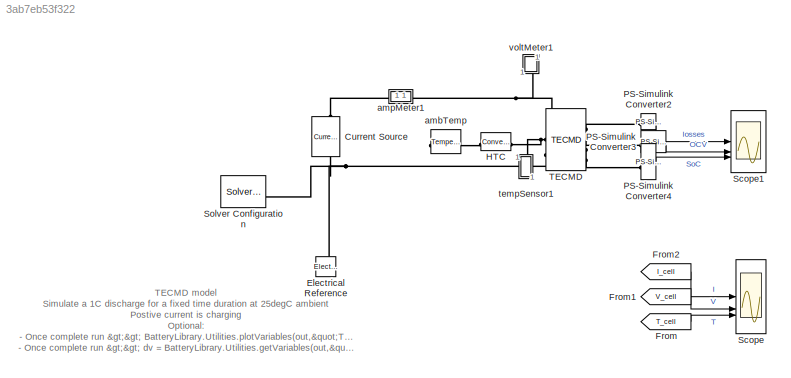
MODEL slx_3ab7eb53f322
KIND model
CONFIG AbsTol = auto
CONFIG EnableMultiTasking = off
CONFIG FixedStep = auto
CONFIG MaxStep = auto
CONFIG MinStep = auto
CONFIG RelTol = 1e-3
CONFIG SampleTimeConstraint = Unconstrained
CONFIG SolverName = VariableStepAuto
CONFIG StartTime = 0.0
CONFIG StopTime = 3600
BLOCK [Reference] Current  Source  REF=ee_lib/Sources/Current Source
  NameLocation = left
  SourceBlock = ee_lib/Sources/Current Source
  SourceType = Current Source
BLOCK [Reference] Electrical Reference  REF=fl_lib/Electrical/Electrical Elements/Electrical Reference
  NameLocation = right
  SourceBlock = fl_lib/Electrical/Electrical Elements/Electrical Reference
  SourceType = Electrical Reference
BLOCK [From] From
  GotoTag = T_cell
  TagVisibility = global
BLOCK [From] From1
  GotoTag = V_cell
  TagVisibility = global
BLOCK [From] From2
  GotoTag = I_cell
  TagVisibility = global
BLOCK [Reference] HTC  REF=fl_lib/Thermal/Thermal Elements/Convective Heat
Transfer
  NameLocation = top
  SourceBlock = fl_lib/Thermal/Thermal Elements/Convective Heat\nTransfer
  SourceType = Convective Heat\nTransfer
BLOCK [Reference] PS-Simulink Converter2  REF=nesl_utility/PS-Simulink
Converter
  SourceBlock = nesl_utility/PS-Simulink\nConverter
  SourceType = PS-Simulink\nConverter
BLOCK [Reference] PS-Simulink Converter3  REF=nesl_utility/PS-Simulink
Converter
  SourceBlock = nesl_utility/PS-Simulink\nConverter
  SourceType = PS-Simulink\nConverter
BLOCK [Reference] PS-Simulink Converter4  REF=nesl_utility/PS-Simulink
Converter
  SourceBlock = nesl_utility/PS-Simulink\nConverter
  SourceType = PS-Simulink\nConverter
BLOCK [Scope] Scope
  Floating = off
  NumInputPorts = 3
  ScopeSpecificationString = Simulink.scopes.TimeScopeBlockCfg('CurrentConfiguration', extmgr.ConfigurationSet(extmgr.Configuration('Core','General UI',true),extmgr.Configuration('Core','Source UI',true),extmgr.Configuration('Sources','WiredSimulink',true,'DataLoggingVariableName','ScopeData1'),extmgr.Configuration('Visuals','Time Domain',true,'SerializedDisplays',{struct('MinYLimReal','-5.9','MaxYLimReal','-3.9','YLabelReal'...<+2730ch>
BLOCK [Scope] Scope1
  Floating = off
  NumInputPorts = 3
  ScopeSpecificationString = Simulink.scopes.TimeScopeBlockCfg('CurrentConfiguration', extmgr.ConfigurationSet(extmgr.Configuration('Core','General UI',true),extmgr.Configuration('Core','Source UI',true),extmgr.Configuration('Sources','WiredSimulink',true,'DataLoggingVariableName','ScopeData1'),extmgr.Configuration('Visuals','Time Domain',true,'SerializedDisplays',{struct('MinYLimReal','-0.3914','MaxYLimReal','0.04349','YLabe...<+2742ch>
BLOCK [Reference] Solver Configuration  REF=nesl_utility/Solver
Configuration
  SourceBlock = nesl_utility/Solver\nConfiguration
  SourceType = Solver\nConfiguration
BLOCK [Reference] TECMD  REF=BatteryLibrary_lib/Models/TECMD
  SourceBlock = BatteryLibrary_lib/Models/TECMD
  SourceType = TECMD
BLOCK [Reference] ambTemp  REF=fl_lib/Thermal/Thermal Sources/Temperature Source
  NameLocation = top
  SourceBlock = fl_lib/Thermal/Thermal Sources/Temperature Source
  SourceType = Temperature Source
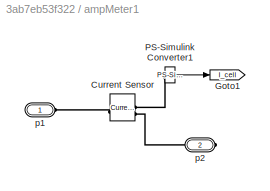
BLOCK [SubSystem] ampMeter1
  ShowPortLabels = none
BLOCK [Reference] ampMeter1/Current Sensor  REF=fl_lib/Electrical/Electrical Sensors/Current Sensor
  SourceBlock = fl_lib/Electrical/Electrical Sensors/Current Sensor
  SourceType = Current Sensor
BLOCK [Goto] ampMeter1/Goto1
  GotoTag = I_cell
  TagVisibility = global
BLOCK [Reference] ampMeter1/PS-Simulink Converter1  REF=nesl_utility/PS-Simulink
Converter
  SourceBlock = nesl_utility/PS-Simulink\nConverter
  SourceType = PS-Simulink\nConverter
BLOCK [PMIOPort] ampMeter1/p1
  Side = Left
BLOCK [PMIOPort] ampMeter1/p2
  Port = 2
  Side = Right
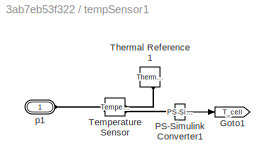
BLOCK [SubSystem] tempSensor1
  NameLocation = left
  ShowPortLabels = none
BLOCK [Goto] tempSensor1/Goto1
  GotoTag = T_cell
  TagVisibility = global
BLOCK [Reference] tempSensor1/PS-Simulink Converter1  REF=nesl_utility/PS-Simulink
Converter
  SourceBlock = nesl_utility/PS-Simulink\nConverter
  SourceType = PS-Simulink\nConverter
BLOCK [Reference] tempSensor1/Temperature Sensor  REF=fl_lib/Thermal/Thermal Sensors/Temperature Sensor
  SourceBlock = fl_lib/Thermal/Thermal Sensors/Temperature Sensor
  SourceType = Temperature Sensor
BLOCK [Reference] tempSensor1/Thermal Reference1  REF=fl_lib/Thermal/Thermal Elements/Thermal Reference
  NameLocation = left
  SourceBlock = fl_lib/Thermal/Thermal Elements/Thermal Reference
  SourceType = Thermal Reference
BLOCK [PMIOPort] tempSensor1/p1
  Side = Left
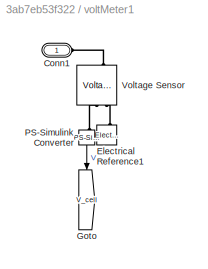
BLOCK [SubSystem] voltMeter1
  NameLocation = right
  ShowPortLabels = none
BLOCK [PMIOPort] voltMeter1/Conn1
  Side = Left
BLOCK [Reference] voltMeter1/Electrical Reference1  REF=fl_lib/Electrical/Electrical Elements/Electrical Reference
  NameLocation = right
  SourceBlock = fl_lib/Electrical/Electrical Elements/Electrical Reference
  SourceType = Electrical Reference
BLOCK [Goto] voltMeter1/Goto
  GotoTag = V_cell
  NameLocation = left
  TagVisibility = global
BLOCK [Reference] voltMeter1/PS-Simulink Converter  REF=nesl_utility/PS-Simulink
Converter
  NameLocation = left
  SourceBlock = nesl_utility/PS-Simulink\nConverter
  SourceType = PS-Simulink\nConverter
BLOCK [Reference] voltMeter1/Voltage Sensor  REF=fl_lib/Electrical/Electrical Sensors/Voltage Sensor
  NameLocation = right
  SourceBlock = fl_lib/Electrical/Electrical Sensors/Voltage Sensor
  SourceType = Voltage Sensor
ANNOTATION (root): TECMD model Simulate a 1C discharge for a fixed time duration at 25degC ambient Postive current is charging Optional: - Once complete run >> BatteryLibrary.Utilities.plotVariables(out,"TECMD") on the command line or, even better, on a live script to see summary results - Once complete run >> dv = BatteryLibrary.Utilities.getVariables(out,"TECMD") on the command line to get the distributed and time...<+10ch>
LINE From1:1 -> Scope:2
LINE From2:1 -> Scope:1
LINE From:1 -> Scope:3
LINE PS-Simulink Converter2:1 -> Scope1:1
LINE PS-Simulink Converter3:1 -> Scope1:2
LINE PS-Simulink Converter4:1 -> Scope1:3
LINE ampMeter1/PS-Simulink Converter1:1 -> ampMeter1/Goto1:1
LINE tempSensor1/PS-Simulink Converter1:1 -> tempSensor1/Goto1:1
LINE voltMeter1/PS-Simulink Converter:1 -> voltMeter1/Goto:1
PLINE Current  Source:LConn1 -- ampMeter1:LConn1
PNET net1: Current  Source:RConn1 -- Electrical Reference:LConn1 -- Solver Configuration:RConn1 -- TECMD:RConn4
PNET net2: HTC:LConn1 -- TECMD:LConn1 -- tempSensor1:LConn1
PLINE HTC:RConn1 -- ambTemp:LConn1
PLINE PS-Simulink Converter2:LConn1 -- TECMD:RConn1
PLINE PS-Simulink Converter3:LConn1 -- TECMD:RConn2
PLINE PS-Simulink Converter4:LConn1 -- TECMD:RConn3
PNET net3: TECMD:LConn2 -- ampMeter1:RConn1 -- voltMeter1:LConn1
PLINE ampMeter1/Current Sensor:LConn1 -- ampMeter1/p1:RConn1
PLINE ampMeter1/Current Sensor:RConn1 -- ampMeter1/PS-Simulink Converter1:LConn1
PLINE ampMeter1/Current Sensor:RConn2 -- ampMeter1/p2:RConn1
PLINE tempSensor1/PS-Simulink Converter1:LConn1 -- tempSensor1/Temperature Sensor:RConn2
PLINE tempSensor1/Temperature Sensor:LConn1 -- tempSensor1/p1:RConn1
PLINE tempSensor1/Temperature Sensor:RConn1 -- tempSensor1/Thermal Reference1:LConn1
PLINE voltMeter1/Conn1:RConn1 -- voltMeter1/Voltage Sensor:LConn1
PLINE voltMeter1/Electrical Reference1:LConn1 -- voltMeter1/Voltage Sensor:RConn2
PLINE voltMeter1/PS-Simulink Converter:LConn1 -- voltMeter1/Voltage Sensor:RConn1
note: PNET lines group multi-terminal physical nets as a canonical sorted terminal list (undirected conserving connections); 2-terminal nets keep the pairwise PLINE form
